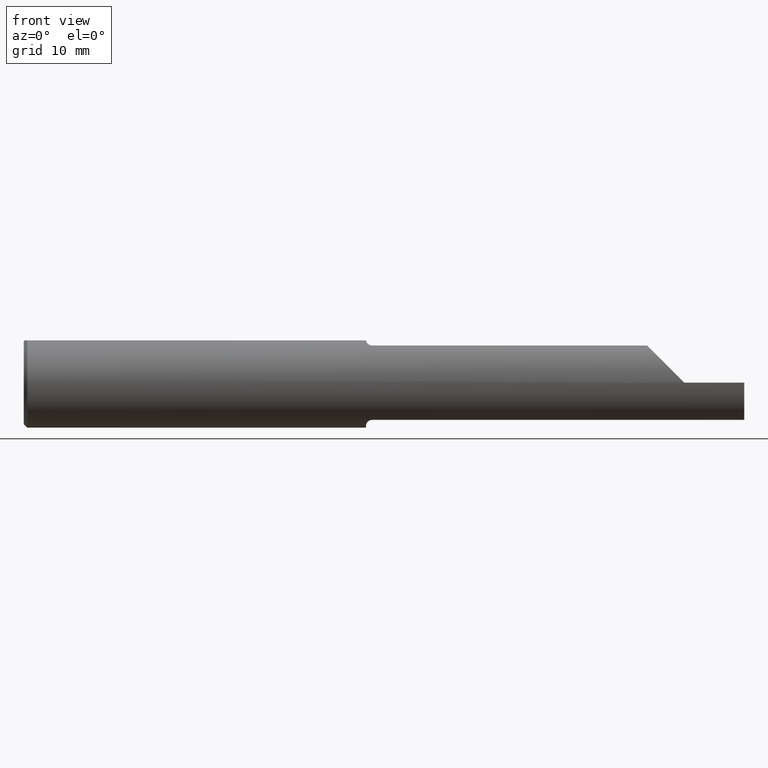
[diagram: clean part render]
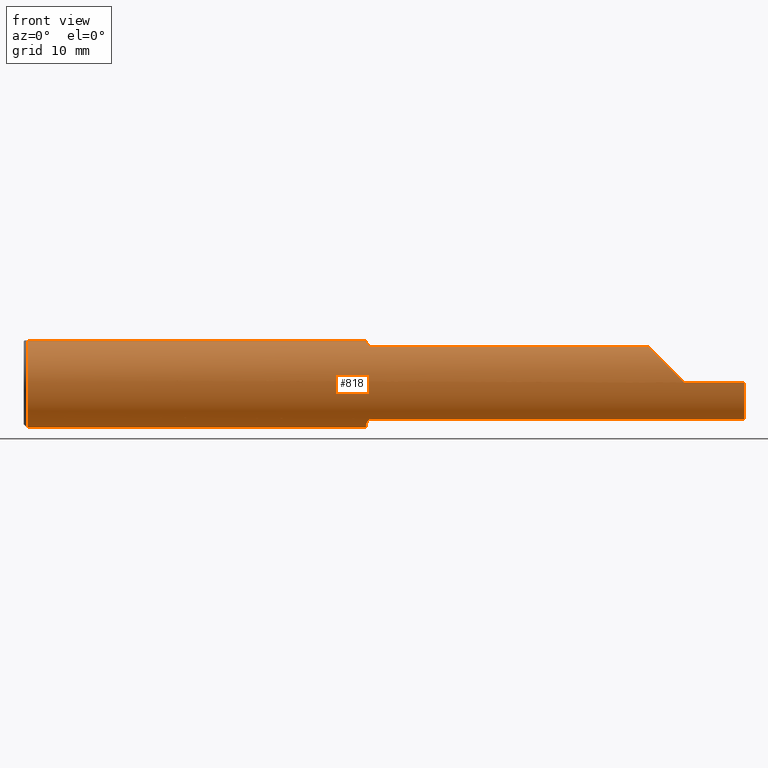
[diagram: same view with one face highlighted and labeled with its STEP entity id]
A machine part, front view. The second image highlights one B-rep face of the part: STEP entity #818.
In plain terms, the highlighted cylindrical surface (partial cylindrical patch) has radius 4.7587 mm, axis along (-1, -0, -0).
Its self-contained STEP definition (entity closure, byte-faithful):
#8 = ORIENTED_EDGE ( 'NONE', *, *, #612, .T. ) ;
#27 = CARTESIAN_POINT ( 'NONE',  ( 1.450000000000000178, -0.1111655275381552704, -0.1508053314281814217 ) ) ;
#41 = CARTESIAN_POINT ( 'NONE',  ( 2.750000000000000444, 0.000000000000000000, 0.000000000000000000 ) ) ;
#42 = CARTESIAN_POINT ( 'NONE',  ( 2.750000000000000444, -0.1873496730715054903, 0.0003499999999995605151 ) ) ;
#58 = ORIENTED_EDGE ( 'NONE', *, *, #551, .T. ) ;
#66 = ORIENTED_EDGE ( 'NONE', *, *, #85, .T. ) ;
#73 = CARTESIAN_POINT ( 'NONE',  ( 1.426478687487613639, -0.07534999999999995868, 0.1715295892841815495 ) ) ;
#79 = CARTESIAN_POINT ( 'NONE',  ( 1.426478687487605646, -0.07534999999994894393, -0.1715295892842039482 ) ) ;
#80 = CARTESIAN_POINT ( 'NONE',  ( 1.450000000000000178, -0.1111655275381552704, 0.1508053314281814217 ) ) ;
#81 = VERTEX_POINT ( 'NONE', #186 ) ;
#83 = VERTEX_POINT ( 'NONE', #488 ) ;
#85 = EDGE_CURVE ( 'NONE', #566, #607, #687, .T. ) ;
#93 = ORIENTED_EDGE ( 'NONE', *, *, #279, .F. ) ;
#101 = CARTESIAN_POINT ( 'NONE',  ( 1.431253303781169883, -0.09363708362384969008, 0.1623181733163006346 ) ) ;
#103 = CARTESIAN_POINT ( 'NONE',  ( 3.000000000000000444, 0.06325108694718233060, 0.1763499999999999235 ) ) ;
#106 = DIRECTION ( 'NONE',  ( 1.000000000000000000, 0.000000000000000000, 0.000000000000000000 ) ) ;
#108 = CARTESIAN_POINT ( 'NONE',  ( 1.425439896557285868, -0.06737885671737312010, 0.1748695014197204356 ) ) ;
#112 = CARTESIAN_POINT ( 'NONE',  ( 1.447840824787755443, -0.1111655275381552704, 0.1508053314281814494 ) ) ;
#114 = LINE ( 'NONE', #563, #623 ) ;
#117 = VERTEX_POINT ( 'NONE', #80 ) ;
#122 = CARTESIAN_POINT ( 'NONE',  ( 3.000000000000000444, 0.000000000000000000, 0.000000000000000000 ) ) ;
#132 = ORIENTED_EDGE ( 'NONE', *, *, #576, .T. ) ;
#142 = LINE ( 'NONE', #226, #670 ) ;
#144 = ORIENTED_EDGE ( 'NONE', *, *, #697, .T. ) ;
#173 = CARTESIAN_POINT ( 'NONE',  ( 1.434555280550786849, -0.1002805646452517713, 0.1583000352897937224 ) ) ;
#177 = CARTESIAN_POINT ( 'NONE',  ( 1.450000000000000178, -0.1111655275381552704, 0.1508053314281814217 ) ) ;
#179 = CARTESIAN_POINT ( 'NONE',  ( 1.447842917297106791, -0.1111655275381357721, -0.1508053314282012947 ) ) ;
#186 = CARTESIAN_POINT ( 'NONE',  ( 0.01500000000000407431, 0.000000000000000000, -0.1873499999999999888 ) ) ;
#204 = VERTEX_POINT ( 'NONE', #682 ) ;
#217 = CARTESIAN_POINT ( 'NONE',  ( 2.635462471271804219, -0.1598910295916960156, 0.1148875287281957286 ) ) ;
#226 = CARTESIAN_POINT ( 'NONE',  ( 3.000000000000000444, -0.1873499999999999610, -4.469813191451678053E-17 ) ) ;
#232 = DIRECTION ( 'NONE',  ( -1.000000000000000000, -0.000000000000000000, -0.000000000000000000 ) ) ;
#236 = B_SPLINE_CURVE_WITH_KNOTS ( 'NONE', 3,
 ( #177, #112, #253, #268, #336, #862, #173, #101, #491, #257, #866, #568 ),
 .UNSPECIFIED., .F., .F.,
 ( 4, 2, 2, 2, 2, 4 ),
 ( 0.000000000000000000, 0.0001618095382700048305, 0.0003236190765400096610, 0.0006472381530800058779, 0.0009708572296200021490, 0.001294476306159998312 ),
 .UNSPECIFIED. ) ;
#242 = VERTEX_POINT ( 'NONE', #924 ) ;
#252 = VECTOR ( 'NONE', #445, 39.37007874015748143 ) ;
#253 = CARTESIAN_POINT ( 'NONE',  ( 1.445768331180431909, -0.1105668026956975053, 0.1512491196838317009 ) ) ;
#257 = CARTESIAN_POINT ( 'NONE',  ( 1.427871177471789155, -0.08285827945689645813, 0.1680807655869951678 ) ) ;
#258 = DIRECTION ( 'NONE',  ( 1.000000000000000000, -0.000000000000000000, -0.000000000000000000 ) ) ;
#268 = CARTESIAN_POINT ( 'NONE',  ( 1.442178388317598703, -0.1087237717143362814, 0.1525793417461623891 ) ) ;
#273 = DIRECTION ( 'NONE',  ( 0.000000000000000000, 0.000000000000000000, -1.000000000000000000 ) ) ;
#275 = DIRECTION ( 'NONE',  ( 1.000000000000000000, 0.000000000000000000, 0.000000000000000000 ) ) ;
#279 = EDGE_CURVE ( 'NONE', #875, #242, #628, .T. ) ;
#294 = EDGE_CURVE ( 'NONE', #436, #204, #774, .T. ) ;
#309 = LINE ( 'NONE', #457, #252 ) ;
#311 = EDGE_CURVE ( 'NONE', #117, #566, #236, .T. ) ;
#314 = VERTEX_POINT ( 'NONE', #939 ) ;
#326 = CARTESIAN_POINT ( 'NONE',  ( 1.442175898121774935, -0.1087238381091981954, -0.1525793326322721355 ) ) ;
#329 = AXIS2_PLACEMENT_3D ( 'NONE', #943, #633, #273 ) ;
#332 = CARTESIAN_POINT ( 'NONE',  ( 1.440623984237019206, -0.1074936703607914934, -0.1534529456673628389 ) ) ;
#336 = CARTESIAN_POINT ( 'NONE',  ( 1.440624326360086860, -0.1074933921529483000, 0.1534530870474000996 ) ) ;
#337 = LINE ( 'NONE', #103, #577 ) ;
#342 = DIRECTION ( 'NONE',  ( -1.000000000000000000, -0.000000000000000000, -0.000000000000000000 ) ) ;
#352 = ORIENTED_EDGE ( 'NONE', *, *, #840, .T. ) ;
#355 = FACE_OUTER_BOUND ( 'NONE', #525, .T. ) ;
#370 = CARTESIAN_POINT ( 'NONE',  ( 1.426478687487605646, -0.07534999999994894393, -0.1715295892842039482 ) ) ;
#373 = CIRCLE ( 'NONE', #928, 0.1873499999999999888 ) ;
#379 = CARTESIAN_POINT ( 'NONE',  ( 1.427076714346777742, -0.07913036352372354587, -0.1698689405721950929 ) ) ;
#402 =( BOUNDED_CURVE ( )  B_SPLINE_CURVE ( 3, ( #42, #966, #217, #515 ),
 .UNSPECIFIED., .F., .T. ) 
 B_SPLINE_CURVE_WITH_KNOTS ( ( 4, 4 ),
 ( 4.714257142666967049, 5.647961724597858613 ),
 .UNSPECIFIED. ) 
 CURVE ( )  GEOMETRIC_REPRESENTATION_ITEM ( )  RATIONAL_B_SPLINE_CURVE ( ( 1.000000000000000000, 0.9286596154903584699, 0.9286596154903584699, 1.000000000000000000 ) ) 
 REPRESENTATION_ITEM ( '' )  );
#410 = CARTESIAN_POINT ( 'NONE',  ( 1.426478687487613639, -0.07534999999999995868, 0.1715295892841815495 ) ) ;
#413 = CARTESIAN_POINT ( 'NONE',  ( 1.445787183057445802, -0.1105751300725856812, -0.1512430703507947338 ) ) ;
#419 = CARTESIAN_POINT ( 'NONE',  ( 0.01500000000000407431, 0.06325108694718213631, 0.1763499999999999790 ) ) ;
#430 = CARTESIAN_POINT ( 'NONE',  ( 1.426478687487605646, -0.07534999999994894393, -0.1715295892842039482 ) ) ;
#436 = VERTEX_POINT ( 'NONE', #586 ) ;
#445 = DIRECTION ( 'NONE',  ( -1.000000000000000000, -0.000000000000000000, -0.000000000000000000 ) ) ;
#457 = CARTESIAN_POINT ( 'NONE',  ( 2.172500000000000320, -0.1111655275381552704, -0.1508053314281814217 ) ) ;
#458 = B_SPLINE_CURVE_WITH_KNOTS ( 'NONE', 3,
 ( #370, #379, #675, #669, #981, #975, #908, #332, #326, #413, #179, #27 ),
 .UNSPECIFIED., .F., .F.,
 ( 4, 2, 2, 2, 2, 4 ),
 ( 0.0005353161947638540065, 0.0008532056447682668816, 0.001171095094772679757, 0.001488984544777092632, 0.001647929269779298961, 0.001806873994781505507 ),
 .UNSPECIFIED. ) ;
#475 = DIRECTION ( 'NONE',  ( 1.000000000000000000, 0.000000000000000000, 0.000000000000000000 ) ) ;
#480 = CARTESIAN_POINT ( 'NONE',  ( 1.425000000000000266, 0.000000000000000000, 0.000000000000000000 ) ) ;
#488 = CARTESIAN_POINT ( 'NONE',  ( 0.01500000000000344114, -0.06325108694718359348, 0.1763499999999999790 ) ) ;
#490 = DIRECTION ( 'NONE',  ( -1.000000000000000000, -0.000000000000000000, -0.000000000000000000 ) ) ;
#491 = CARTESIAN_POINT ( 'NONE',  ( 1.429954557781144331, -0.09009039404888796732, 0.1643178600608700135 ) ) ;
#493 = ORIENTED_EDGE ( 'NONE', *, *, #311, .T. ) ;
#498 = AXIS2_PLACEMENT_3D ( 'NONE', #793, #258, #705 ) ;
#505 = VERTEX_POINT ( 'NONE', #573 ) ;
#515 = CARTESIAN_POINT ( 'NONE',  ( 2.599544668571819095, -0.1111655275381558949, 0.1508053314281809498 ) ) ;
#518 = EDGE_CURVE ( 'NONE', #505, #314, #402, .T. ) ;
#519 = DIRECTION ( 'NONE',  ( 1.000000000000000000, -0.000000000000000000, -0.000000000000000000 ) ) ;
#523 = CARTESIAN_POINT ( 'NONE',  ( 1.425000000000000266, -0.05559153948241538773, -0.1789122780526117285 ) ) ;
#525 = EDGE_LOOP ( 'NONE', ( #615, #779, #865, #352, #942, #743, #493, #66, #144, #601, #587, #8, #93, #58, #132 ) ) ;
#533 = EDGE_CURVE ( 'NONE', #436, #578, #142, .T. ) ;
#537 = EDGE_CURVE ( 'NONE', #204, #910, #309, .T. ) ;
#551 = EDGE_CURVE ( 'NONE', #875, #755, #972, .T. ) ;
#553 = CARTESIAN_POINT ( 'NONE',  ( 3.000000000000000444, -0.06325108694718233060, 0.1763499999999999235 ) ) ;
#561 = CARTESIAN_POINT ( 'NONE',  ( 1.450000000000000178, -0.1111655275381552704, -0.1508053314281814217 ) ) ;
#563 = CARTESIAN_POINT ( 'NONE',  ( 2.172500000000000320, -0.1111655275381552704, 0.1508053314281814217 ) ) ;
#566 = VERTEX_POINT ( 'NONE', #73 ) ;
#568 = CARTESIAN_POINT ( 'NONE',  ( 1.426478687487613639, -0.07534999999999995868, 0.1715295892841815495 ) ) ;
#570 = EDGE_CURVE ( 'NONE', #83, #81, #625, .T. ) ;
#573 = CARTESIAN_POINT ( 'NONE',  ( 2.750000000000000444, -0.1873496730715054903, 0.0003499999999995605151 ) ) ;
#576 = EDGE_CURVE ( 'NONE', #755, #910, #458, .T. ) ;
#577 = VECTOR ( 'NONE', #475, 39.37007874015748143 ) ;
#578 = VERTEX_POINT ( 'NONE', #781 ) ;
#586 = CARTESIAN_POINT ( 'NONE',  ( 3.000000000000000444, -0.1873500000000000165, -4.469813191451678053E-17 ) ) ;
#587 = ORIENTED_EDGE ( 'NONE', *, *, #678, .T. ) ;
#601 = ORIENTED_EDGE ( 'NONE', *, *, #570, .T. ) ;
#607 = VERTEX_POINT ( 'NONE', #932 ) ;
#612 = EDGE_CURVE ( 'NONE', #737, #242, #337, .T. ) ;
#615 = ORIENTED_EDGE ( 'NONE', *, *, #537, .F. ) ;
#623 = VECTOR ( 'NONE', #275, 39.37007874015748143 ) ;
#625 = CIRCLE ( 'NONE', #759, 0.1873499999999999888 ) ;
#628 = CIRCLE ( 'NONE', #811, 0.1873499999999999888 ) ;
#633 = DIRECTION ( 'NONE',  ( 1.000000000000000000, 0.000000000000000000, 0.000000000000000000 ) ) ;
#654 = DIRECTION ( 'NONE',  ( -1.000000000000000000, -0.000000000000000000, -0.000000000000000000 ) ) ;
#669 = CARTESIAN_POINT ( 'NONE',  ( 1.429948053471883362, -0.09007176591159224421, -0.1643281559590496210 ) ) ;
#670 = VECTOR ( 'NONE', #232, 39.37007874015748143 ) ;
#675 = CARTESIAN_POINT ( 'NONE',  ( 1.427865082443893652, -0.08283314709417988198, -0.1680932348365286877 ) ) ;
#678 = EDGE_CURVE ( 'NONE', #81, #737, #703, .T. ) ;
#682 = CARTESIAN_POINT ( 'NONE',  ( 3.000000000000000444, -0.1111655275381552010, -0.1508053314281814494 ) ) ;
#687 = B_SPLINE_CURVE_WITH_KNOTS ( 'NONE', 3,
 ( #410, #712, #108, #860 ),
 .UNSPECIFIED., .F., .F.,
 ( 4, 4 ),
 ( 0.001294476306159998312, 0.001630041063685013685 ),
 .UNSPECIFIED. ) ;
#697 = EDGE_CURVE ( 'NONE', #607, #83, #935, .T. ) ;
#703 = CIRCLE ( 'NONE', #498, 0.1873499999999999888 ) ;
#705 = DIRECTION ( 'NONE',  ( 0.000000000000000000, 0.000000000000000000, -1.000000000000000000 ) ) ;
#712 = CARTESIAN_POINT ( 'NONE',  ( 1.425855685269239892, -0.07141175738523415639, 0.1732595915669419839 ) ) ;
#714 = DIRECTION ( 'NONE',  ( 0.000000000000000000, 0.000000000000000000, -1.000000000000000000 ) ) ;
#719 = DIRECTION ( 'NONE',  ( 0.000000000000000000, 0.000000000000000000, 1.000000000000000000 ) ) ;
#734 = EDGE_CURVE ( 'NONE', #117, #314, #114, .T. ) ;
#737 = VERTEX_POINT ( 'NONE', #419 ) ;
#743 = ORIENTED_EDGE ( 'NONE', *, *, #734, .F. ) ;
#755 = VERTEX_POINT ( 'NONE', #430 ) ;
#759 = AXIS2_PLACEMENT_3D ( 'NONE', #913, #519, #839 ) ;
#765 = CARTESIAN_POINT ( 'NONE',  ( 1.425471628390130308, -0.06898398245409141649, -0.1743260713610383095 ) ) ;
#774 = CIRCLE ( 'NONE', #329, 0.1873499999999999888 ) ;
#779 = ORIENTED_EDGE ( 'NONE', *, *, #294, .F. ) ;
#781 = CARTESIAN_POINT ( 'NONE',  ( 2.750000000000000444, -0.1873499999999999888, -4.469813191451678053E-17 ) ) ;
#786 = AXIS2_PLACEMENT_3D ( 'NONE', #122, #654, #958 ) ;
#793 = CARTESIAN_POINT ( 'NONE',  ( 0.01500000000000407431, 0.000000000000000000, 0.000000000000000000 ) ) ;
#811 = AXIS2_PLACEMENT_3D ( 'NONE', #480, #106, #714 ) ;
#818 = ADVANCED_FACE ( 'NONE', ( #355 ), #892, .T. ) ;
#830 = CARTESIAN_POINT ( 'NONE',  ( 1.425000000000000266, -0.06239895713696063523, -0.1767970804181337729 ) ) ;
#837 = VECTOR ( 'NONE', #342, 39.37007874015748143 ) ;
#839 = DIRECTION ( 'NONE',  ( 0.000000000000000000, 0.000000000000000000, -1.000000000000000000 ) ) ;
#840 = EDGE_CURVE ( 'NONE', #578, #505, #373, .T. ) ;
#860 = CARTESIAN_POINT ( 'NONE',  ( 1.425210246786177581, -0.06325108694718233060, 0.1763499999999999235 ) ) ;
#862 = CARTESIAN_POINT ( 'NONE',  ( 1.436565098989694533, -0.1034641170928918830, 0.1562236412899351001 ) ) ;
#865 = ORIENTED_EDGE ( 'NONE', *, *, #533, .T. ) ;
#866 = CARTESIAN_POINT ( 'NONE',  ( 1.427079511614913754, -0.07914804615830658974, 0.1698611728947837518 ) ) ;
#875 = VERTEX_POINT ( 'NONE', #951 ) ;
#892 = CYLINDRICAL_SURFACE ( 'NONE', #786, 0.1873499999999999888 ) ;
#908 = CARTESIAN_POINT ( 'NONE',  ( 1.436554031168356227, -0.1034518926464919331, -0.1562319468430166391 ) ) ;
#910 = VERTEX_POINT ( 'NONE', #561 ) ;
#913 = CARTESIAN_POINT ( 'NONE',  ( 0.01500000000000407431, 0.000000000000000000, 0.000000000000000000 ) ) ;
#924 = CARTESIAN_POINT ( 'NONE',  ( 1.425000000000000266, 0.06325108694718213631, 0.1763499999999999790 ) ) ;
#928 = AXIS2_PLACEMENT_3D ( 'NONE', #41, #490, #719 ) ;
#932 = CARTESIAN_POINT ( 'NONE',  ( 1.425210246786177581, -0.06325108694718233060, 0.1763499999999999235 ) ) ;
#935 = LINE ( 'NONE', #553, #837 ) ;
#939 = CARTESIAN_POINT ( 'NONE',  ( 2.599544668571819095, -0.1111655275381558949, 0.1508053314281809498 ) ) ;
#942 = ORIENTED_EDGE ( 'NONE', *, *, #518, .T. ) ;
#943 = CARTESIAN_POINT ( 'NONE',  ( 3.000000000000000444, 0.000000000000000000, 0.000000000000000000 ) ) ;
#951 = CARTESIAN_POINT ( 'NONE',  ( 1.425000000000000266, -0.05559153948241538773, -0.1789122780526117285 ) ) ;
#958 = DIRECTION ( 'NONE',  ( 0.000000000000000000, 0.000000000000000000, 1.000000000000000000 ) ) ;
#966 = CARTESIAN_POINT ( 'NONE',  ( 2.689466948591781925, -0.1872365873764759714, 0.06088305140821922978 ) ) ;
#972 = B_SPLINE_CURVE_WITH_KNOTS ( 'NONE', 3,
 ( #523, #830, #765, #79 ),
 .UNSPECIFIED., .F., .F.,
 ( 4, 4 ),
 ( 0.000000000000000000, 0.0005353161947638540065 ),
 .UNSPECIFIED. ) ;
#975 = CARTESIAN_POINT ( 'NONE',  ( 1.434565425567610575, -0.1003007981862105297, -0.1582877711856870429 ) ) ;
#981 = CARTESIAN_POINT ( 'NONE',  ( 1.431244079504313538, -0.09361870253556400789, -0.1623293170049111001 ) ) ;